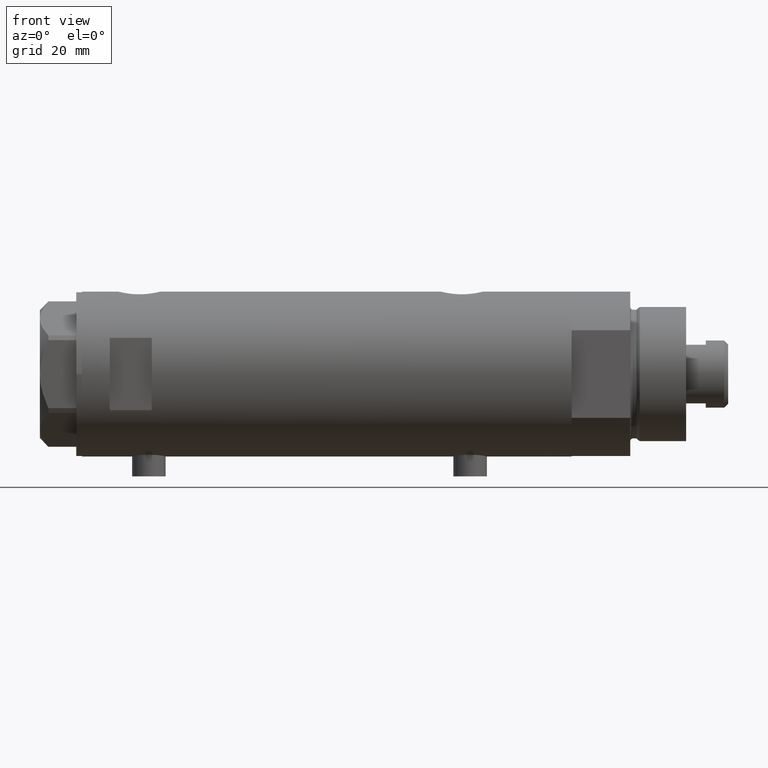
[diagram: clean part render]
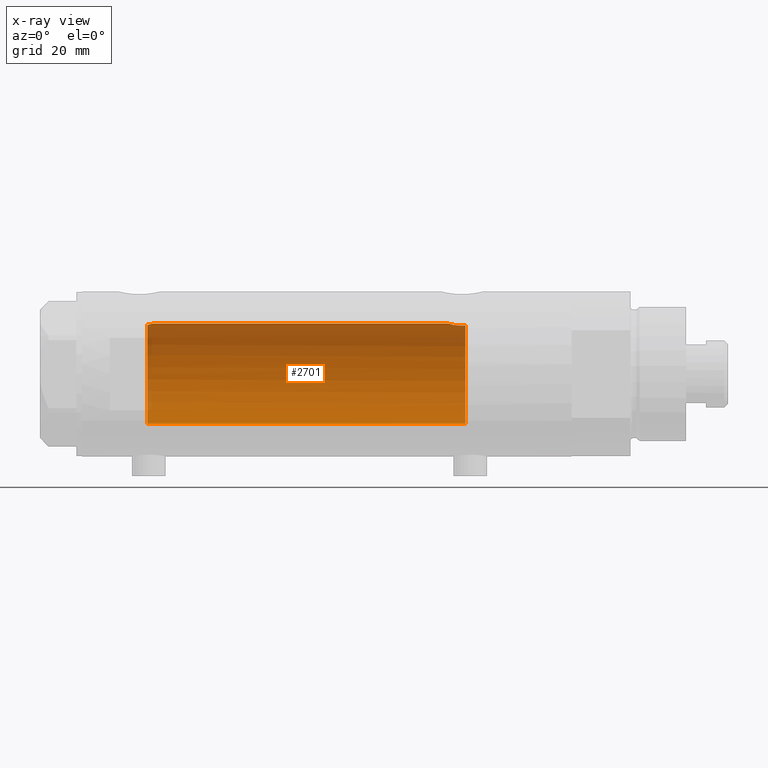
[diagram: x-ray — body ghosted, one internal face saturated and labeled with its STEP entity id]
A machine part, front view, then the same camera in x-ray: the body is ghosted and one INTERNAL B-rep face — a face not visible from any outside direction — is saturated and labeled: STEP entity #2701.
In plain terms, the highlighted cylindrical surface (partial cylindrical patch) has radius 18 mm, axis along (1, 0, -0).
Its self-contained STEP definition (entity closure, byte-faithful):
#17 = FACE_OUTER_BOUND ( 'NONE', #1801, .T. ) ;
#34 = DIRECTION ( 'NONE',  ( 1.000000000000000000, 0.000000000000000000, 0.000000000000000000 ) ) ;
#179 = CARTESIAN_POINT ( 'NONE',  ( 18.00000000000000000, 2.204364238465235428E-15, 87.59999999999998010 ) ) ;
#195 = CARTESIAN_POINT ( 'NONE',  ( 17.71174132276682300, 3.211689381115077513, -44.74121359250872132 ) ) ;
#214 = CARTESIAN_POINT ( 'NONE',  ( 17.98587882862718601, 0.7362002489460847121, -43.58746722239206406 ) ) ;
#229 = VERTEX_POINT ( 'NONE', #4111 ) ;
#263 = CARTESIAN_POINT ( 'NONE',  ( 17.97733715731491344, 0.9209699998971166979, -43.61935966604425374 ) ) ;
#287 = CARTESIAN_POINT ( 'NONE',  ( 17.32928165965087786, 4.867855194001448282, -48.31899018256648048 ) ) ;
#299 = CARTESIAN_POINT ( 'NONE',  ( 0.000000000000000000, 0.000000000000000000, -49.60000000000000853 ) ) ;
#344 = DIRECTION ( 'NONE',  ( 0.000000000000000000, 0.000000000000000000, -1.000000000000000000 ) ) ;
#354 = CARTESIAN_POINT ( 'NONE',  ( 17.43128843254318383, 4.489613141718952427, -46.51700003713170872 ) ) ;
#401 = CARTESIAN_POINT ( 'NONE',  ( 17.91007218376326193, 1.805463612197656831, 62.57866376881661097 ) ) ;
#444 = CIRCLE ( 'NONE', #2024, 18.00000000000000000 ) ;
#493 = CARTESIAN_POINT ( 'NONE',  ( 18.00000000000000000, 0.000000000000000000, 62.23499999999999233 ) ) ;
#519 = CARTESIAN_POINT ( 'NONE',  ( -18.00000000000000000, 0.000000000000000000, 87.59999999999998010 ) ) ;
#535 = CARTESIAN_POINT ( 'NONE',  ( 17.76085061188611292, 2.927954048074872251, -44.51043039029094217 ) ) ;
#617 = CARTESIAN_POINT ( 'NONE',  ( 17.41328271218089796, 4.558641711475903691, -46.69087254718661484 ) ) ;
#680 = CARTESIAN_POINT ( 'NONE',  ( 17.61032289555864239, 3.726910670425183536, -45.26756985850233406 ) ) ;
#705 = ORIENTED_EDGE ( 'NONE', *, *, #1929, .F. ) ;
#731 = CARTESIAN_POINT ( 'NONE',  ( 17.76196254920472128, 2.921230608637938264, 63.20535341986155231 ) ) ;
#751 = CARTESIAN_POINT ( 'NONE',  ( 17.98843015915092636, 0.7391836159806548512, 62.27731130524779246 ) ) ;
#931 = CARTESIAN_POINT ( 'NONE',  ( -18.00000000000000000, 0.000000000000000000, -49.60000000000000853 ) ) ;
#953 = CARTESIAN_POINT ( 'NONE',  ( 17.91189082287941758, 1.809824880389073964, -43.86912370284670004 ) ) ;
#966 = VERTEX_POINT ( 'NONE', #1273 ) ;
#982 = ORIENTED_EDGE ( 'NONE', *, *, #1669, .F. ) ;
#1026 = CARTESIAN_POINT ( 'NONE',  ( 17.49030773641653269, 4.256160900234551292, -46.01469509681786718 ) ) ;
#1036 = CARTESIAN_POINT ( 'NONE',  ( 0.000000000000000000, 0.000000000000000000, 87.59999999999998010 ) ) ;
#1050 = CARTESIAN_POINT ( 'NONE',  ( 17.38237957915196574, 4.675094569549003154, -47.04138980228257338 ) ) ;
#1068 = CARTESIAN_POINT ( 'NONE',  ( 17.35631194664785681, 4.771042759406570077, -47.39667763205954998 ) ) ;
#1101 = CARTESIAN_POINT ( 'NONE',  ( 17.58783030962034388, 3.829911878881820719, 64.09999999999999432 ) ) ;
#1125 = VERTEX_POINT ( 'NONE', #3760 ) ;
#1144 = CARTESIAN_POINT ( 'NONE',  ( 17.78617492856930227, 2.770629413254892537, 63.09682049650069757 ) ) ;
#1218 = CARTESIAN_POINT ( 'NONE',  ( 17.83051055968251930, 2.469307448774133551, -44.20420614498793555 ) ) ;
#1240 = CIRCLE ( 'NONE', #2251, 18.00000000000000000 ) ;
#1273 = CARTESIAN_POINT ( 'NONE',  ( 18.00000000000000000, 0.000000000000000000, 62.23499999999999233 ) ) ;
#1357 = CARTESIAN_POINT ( 'NONE',  ( 17.63589737371338373, 3.604488512479872231, -45.12742655266250580 ) ) ;
#1447 = VECTOR ( 'NONE', #1607, 1000.000000000000000 ) ;
#1470 = CARTESIAN_POINT ( 'NONE',  ( 17.94167814235965608, 1.458276351914870483, 62.45504464479716944 ) ) ;
#1506 = CARTESIAN_POINT ( 'NONE',  ( 17.63704841537101586, 3.603891093161675663, 63.81145343596541863 ) ) ;
#1572 = CARTESIAN_POINT ( 'NONE',  ( 17.68656644271517919, 3.347025706529859423, -44.86453774950911111 ) ) ;
#1607 = DIRECTION ( 'NONE',  ( -0.000000000000000000, -0.000000000000000000, -1.000000000000000000 ) ) ;
#1657 = CARTESIAN_POINT ( 'NONE',  ( 17.34671983132639994, 4.806279138776326398, -49.24012329268314403 ) ) ;
#1669 = EDGE_CURVE ( 'NONE', #966, #1125, #2289, .T. ) ;
#1704 = CARTESIAN_POINT ( 'NONE',  ( 17.33262691996381477, 4.855935766715063551, -48.87488940890202826 ) ) ;
#1801 = EDGE_LOOP ( 'NONE', ( #982, #705, #2851, #1870, #3899, #2876 ) ) ;
#1852 = EDGE_CURVE ( 'NONE', #3886, #229, #444, .T. ) ;
#1870 = ORIENTED_EDGE ( 'NONE', *, *, #3065, .T. ) ;
#1901 = DIRECTION ( 'NONE',  ( -0.000000000000000000, -0.000000000000000000, -1.000000000000000000 ) ) ;
#1929 = EDGE_CURVE ( 'NONE', #3886, #966, #1930, .T. ) ;
#1930 = B_SPLINE_CURVE_WITH_KNOTS ( 'NONE', 3,
 ( #3151, #1506, #2873, #731, #1144, #2546, #3527, #3564, #401, #1470, #2487, #751, #3838, #493 ),
 .UNSPECIFIED., .F., .F.,
 ( 4, 2, 2, 2, 2, 2, 4 ),
 ( 0.02614985543880327459, 0.02725214354003947445, 0.02780328759065756050, 0.02835443164127564308, 0.02890557569189372913, 0.02945671974251181519, 0.03055900784374798729 ),
 .UNSPECIFIED. ) ;
#1984 = CARTESIAN_POINT ( 'NONE',  ( 18.00000000000000355, 0.1844036484100904649, -43.53500000000000369 ) ) ;
#2024 = AXIS2_PLACEMENT_3D ( 'NONE', #2050, #2368, #34 ) ;
#2050 = CARTESIAN_POINT ( 'NONE',  ( 0.000000000000000000, 0.000000000000000000, 64.09999999999999432 ) ) ;
#2054 = DIRECTION ( 'NONE',  ( -1.000000000000000000, 0.000000000000000000, 0.000000000000000000 ) ) ;
#2079 = DIRECTION ( 'NONE',  ( -1.000000000000000000, 0.000000000000000000, 0.000000000000000000 ) ) ;
#2108 = CYLINDRICAL_SURFACE ( 'NONE', #4031, 18.00000000000000000 ) ;
#2251 = AXIS2_PLACEMENT_3D ( 'NONE', #299, #344, #2079 ) ;
#2289 = LINE ( 'NONE', #179, #1447 ) ;
#2368 = DIRECTION ( 'NONE',  ( 0.000000000000000000, 0.000000000000000000, 1.000000000000000000 ) ) ;
#2394 = CARTESIAN_POINT ( 'NONE',  ( 17.37157951943345680, 4.714681855650495912, -49.60000000000000142 ) ) ;
#2448 = DIRECTION ( 'NONE',  ( -0.000000000000000000, -0.000000000000000000, -1.000000000000000000 ) ) ;
#2453 = VERTEX_POINT ( 'NONE', #931 ) ;
#2464 = EDGE_CURVE ( 'NONE', #1125, #3647, #2571, .T. ) ;
#2487 = CARTESIAN_POINT ( 'NONE',  ( 17.95540531162506781, 1.279032093992333419, 62.40250861430338603 ) ) ;
#2546 = CARTESIAN_POINT ( 'NONE',  ( 17.83158514913445458, 2.461498934476296974, 62.89965995681277633 ) ) ;
#2571 = B_SPLINE_CURVE_WITH_KNOTS ( 'NONE', 3,
 ( #3687, #1984, #3338, #214, #263, #2978, #953, #4296, #1218, #3613, #535, #195, #1572, #1357, #680, #4413, #1026, #354, #617, #1050, #1068, #4081, #3104, #287, #1704, #1657, #2394 ),
 .UNSPECIFIED., .F., .F.,
 ( 4, 2, 2, 2, 2, 2, 2, 2, 2, 2, 1, 2, 2, 4 ),
 ( 0.01528157848519461244, 0.01583467956029641424, 0.01638778063539821431, 0.01749398278560182138, 0.01804708386070362491, 0.01860018493580542845, 0.01915328601090723198, 0.01970638708600903899, 0.02081258923621264259, 0.02136569031131445653, 0.02191879138641626701, 0.02247189246151808095, 0.02302499353661989143, 0.02413119568682349503 ),
 .UNSPECIFIED. ) ;
#2701 = ADVANCED_FACE ( 'NONE', ( #17 ), #2108, .F. ) ;
#2734 = EDGE_CURVE ( 'NONE', #2453, #3647, #1240, .T. ) ;
#2851 = ORIENTED_EDGE ( 'NONE', *, *, #1852, .T. ) ;
#2873 = CARTESIAN_POINT ( 'NONE',  ( 17.68814035493779713, 3.348626323852637476, 63.55183600219631046 ) ) ;
#2876 = ORIENTED_EDGE ( 'NONE', *, *, #2464, .F. ) ;
#2944 = VECTOR ( 'NONE', #1901, 1000.000000000000000 ) ;
#2978 = CARTESIAN_POINT ( 'NONE',  ( 17.94405978035184290, 1.463580074031382683, -43.74553017623723861 ) ) ;
#3065 = EDGE_CURVE ( 'NONE', #229, #2453, #3595, .T. ) ;
#3104 = CARTESIAN_POINT ( 'NONE',  ( 17.33118376015917050, 4.861110225087390546, -48.13112109378173642 ) ) ;
#3151 = CARTESIAN_POINT ( 'NONE',  ( 17.58783030962034388, 3.829911878881820719, 64.09999999999999432 ) ) ;
#3338 = CARTESIAN_POINT ( 'NONE',  ( 17.99716691696285764, 0.3685254503903832024, -43.54545042928660337 ) ) ;
#3527 = CARTESIAN_POINT ( 'NONE',  ( 17.85293122918850273, 2.302201220737759346, 62.81031080804813627 ) ) ;
#3564 = CARTESIAN_POINT ( 'NONE',  ( 17.89217382667230183, 1.974183297225222233, 62.64981302266167518 ) ) ;
#3595 = LINE ( 'NONE', #519, #2944 ) ;
#3613 = CARTESIAN_POINT ( 'NONE',  ( 17.78478726694685363, 2.779555353823082608, -44.40297143050466389 ) ) ;
#3647 = VERTEX_POINT ( 'NONE', #4424 ) ;
#3687 = CARTESIAN_POINT ( 'NONE',  ( 18.00000000000000000, 5.958021437579254357E-16, -43.53499999999999659 ) ) ;
#3760 = CARTESIAN_POINT ( 'NONE',  ( 18.00000000000000000, 5.958021437579254357E-16, -43.53499999999999659 ) ) ;
#3838 = CARTESIAN_POINT ( 'NONE',  ( 17.99999999999999645, 0.3728474842072341811, 62.23499999999999943 ) ) ;
#3886 = VERTEX_POINT ( 'NONE', #1101 ) ;
#3899 = ORIENTED_EDGE ( 'NONE', *, *, #2734, .T. ) ;
#4031 = AXIS2_PLACEMENT_3D ( 'NONE', #1036, #2448, #2054 ) ;
#4081 = CARTESIAN_POINT ( 'NONE',  ( 17.34085862114804044, 4.826483754267691495, -47.76145238513613833 ) ) ;
#4111 = CARTESIAN_POINT ( 'NONE',  ( -18.00000000000000000, 0.000000000000000000, 64.09999999999999432 ) ) ;
#4296 = CARTESIAN_POINT ( 'NONE',  ( 17.85236636886078898, 2.306694554785103435, -44.11264586133009402 ) ) ;
#4413 = CARTESIAN_POINT ( 'NONE',  ( 17.53642083926971296, 4.065376572064633542, -45.70260027543618264 ) ) ;
#4424 = CARTESIAN_POINT ( 'NONE',  ( 17.37157951943345680, 4.714681855650495912, -49.60000000000000142 ) ) ;